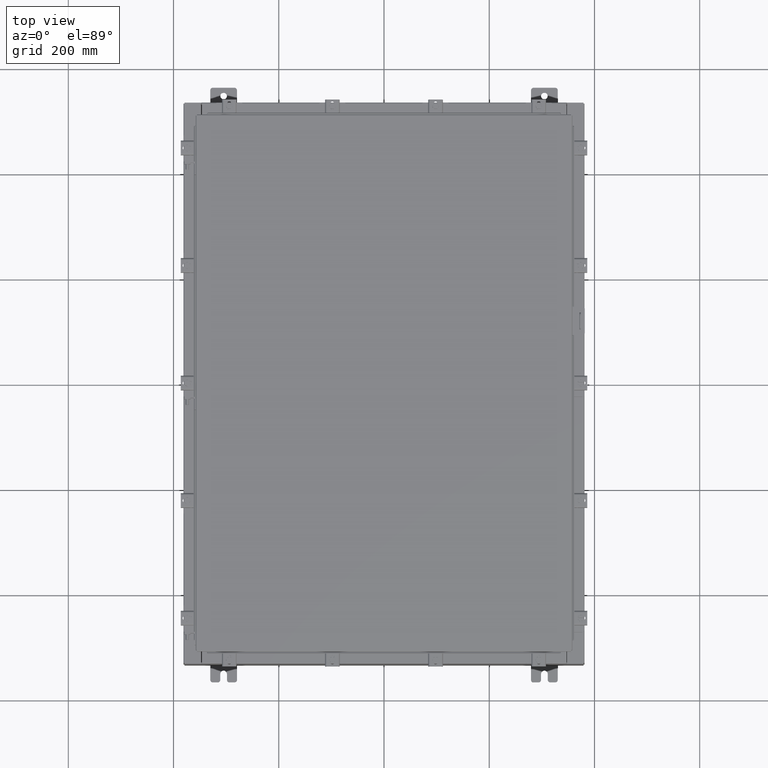
[diagram: clean part render]
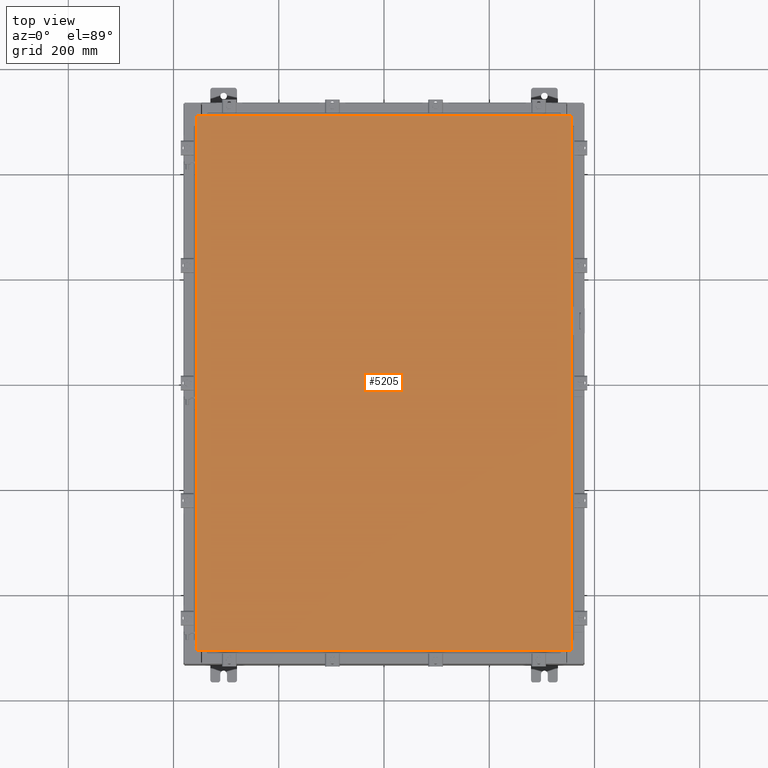
[diagram: same view with one face highlighted and labeled with its STEP entity id]
A machine part, top view. The second image highlights one B-rep face of the part: STEP entity #5205.
In plain terms, the highlighted planar face has unit normal (0, 0, -1).
Its self-contained STEP definition (entity closure, byte-faithful):
#521 = CARTESIAN_POINT ( 'NONE',  ( 0.0000000000000000000, 0.0000000000000000000, 0.0000000000000000000 ) ) ;
#2575 = DIRECTION ( 'NONE',  ( 0.0000000000000000000, 1.000000000000000000, 0.0000000000000000000 ) ) ;
#3474 = VECTOR ( 'NONE', #16765, 39.37007874015748100 ) ;
#5205 = ADVANCED_FACE ( 'NONE', ( #23907 ), #8744, .F. ) ;
#7016 = LINE ( 'NONE', #21135, #10307 ) ;
#7898 = DIRECTION ( 'NONE',  ( 1.000000000000000000, -0.0000000000000000000, -0.0000000000000000000 ) ) ;
#7976 = LINE ( 'NONE', #9207, #3474 ) ;
#8744 = PLANE ( 'NONE',  #22315 ) ;
#8776 = LINE ( 'NONE', #10207, #13814 ) ;
#8823 = DIRECTION ( 'NONE',  ( -1.000000000000000000, 0.0000000000000000000, -0.0000000000000000000 ) ) ;
#9207 = CARTESIAN_POINT ( 'NONE',  ( 13.99029999999999800, 20.00630000000000700, 1.946441695485787500E-015 ) ) ;
#9524 = CARTESIAN_POINT ( 'NONE',  ( -13.99029999999999800, 20.00630000000000300, -2.048885995248197400E-016 ) ) ;
#10207 = CARTESIAN_POINT ( 'NONE',  ( 13.99030000000000000, -20.00630000000000300, -1.297627796990525000E-015 ) ) ;
#10307 = VECTOR ( 'NONE', #7898, 39.37007874015748100 ) ;
#10810 = CARTESIAN_POINT ( 'NONE',  ( 13.99030000000000000, -20.00630000000000300, -1.297627796990525000E-015 ) ) ;
#10990 = LINE ( 'NONE', #9524, #16047 ) ;
#12317 = ORIENTED_EDGE ( 'NONE', *, *, #20790, .T. ) ;
#13317 = DIRECTION ( 'NONE',  ( 0.0000000000000000000, -1.000000000000000000, 0.0000000000000000000 ) ) ;
#13814 = VECTOR ( 'NONE', #2575, 39.37007874015748100 ) ;
#14540 = EDGE_LOOP ( 'NONE', ( #17131, #12317, #19356, #18693 ) ) ;
#15752 = VERTEX_POINT ( 'NONE', #10810 ) ;
#16047 = VECTOR ( 'NONE', #13317, 39.37007874015748100 ) ;
#16529 = VERTEX_POINT ( 'NONE', #22239 ) ;
#16765 = DIRECTION ( 'NONE',  ( -1.000000000000000000, -0.0000000000000000000, -0.0000000000000000000 ) ) ;
#17011 = EDGE_CURVE ( 'NONE', #16529, #19273, #10990, .T. ) ;
#17131 = ORIENTED_EDGE ( 'NONE', *, *, #19845, .T. ) ;
#17538 = VERTEX_POINT ( 'NONE', #24204 ) ;
#18267 = EDGE_CURVE ( 'NONE', #17538, #16529, #7976, .T. ) ;
#18693 = ORIENTED_EDGE ( 'NONE', *, *, #17011, .T. ) ;
#19273 = VERTEX_POINT ( 'NONE', #23393 ) ;
#19356 = ORIENTED_EDGE ( 'NONE', *, *, #18267, .T. ) ;
#19398 = DIRECTION ( 'NONE',  ( 0.0000000000000000000, 0.0000000000000000000, -1.000000000000000000 ) ) ;
#19845 = EDGE_CURVE ( 'NONE', #19273, #15752, #7016, .T. ) ;
#20790 = EDGE_CURVE ( 'NONE', #15752, #17538, #8776, .T. ) ;
#21135 = CARTESIAN_POINT ( 'NONE',  ( -13.99029999999999600, -20.00630000000001000, -2.356218894535426900E-015 ) ) ;
#22239 = CARTESIAN_POINT ( 'NONE',  ( -13.99029999999999800, 20.00630000000000000, -2.048885995248197400E-016 ) ) ;
#22315 = AXIS2_PLACEMENT_3D ( 'NONE', #521, #19398, #8823 ) ;
#23393 = CARTESIAN_POINT ( 'NONE',  ( -13.99029999999999600, -20.00630000000001000, -2.356218894535426900E-015 ) ) ;
#23907 = FACE_OUTER_BOUND ( 'NONE', #14540, .T. ) ;
#24204 = CARTESIAN_POINT ( 'NONE',  ( 13.99029999999999800, 20.00630000000000700, 1.946441695485787500E-015 ) ) ;